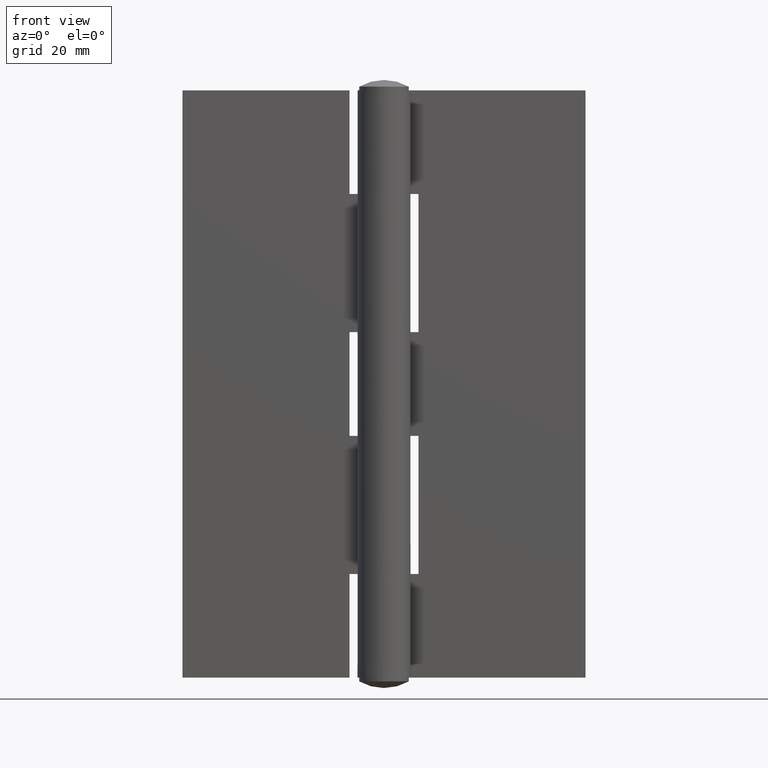
[diagram: clean part render]
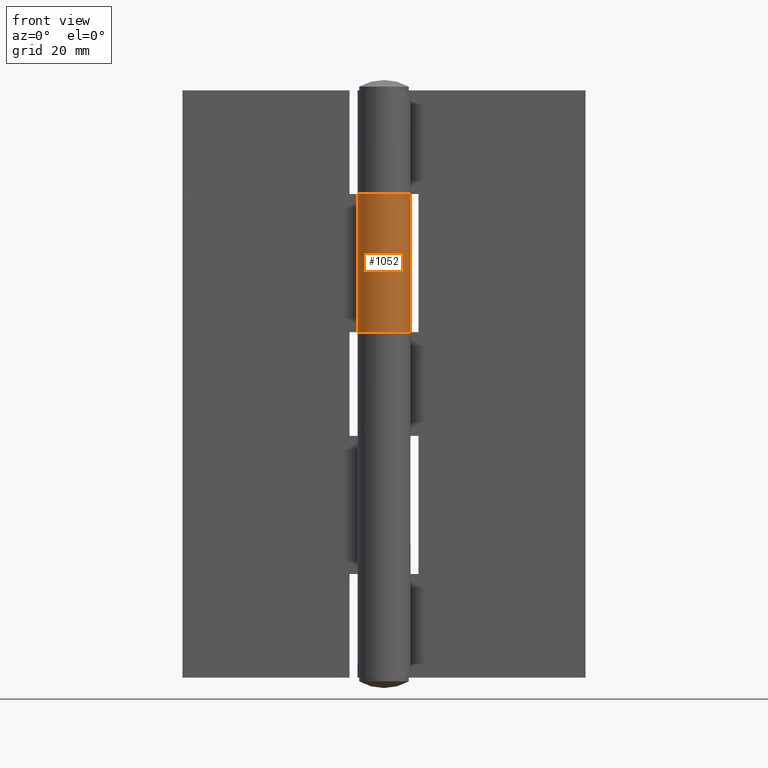
[diagram: same view with one face highlighted and labeled with its STEP entity id]
A machine part, front view. The second image highlights one B-rep face of the part: STEP entity #1052.
In plain terms, the highlighted face is a freeform B-spline surface patch.
Its self-contained STEP definition (entity closure, byte-faithful):
#667=CARTESIAN_POINT('',(0.004289521649760,4.599998000000000,60.0));
#668=VERTEX_POINT('',#667);
#669=CARTESIAN_POINT('',(-3.687479559265210,2.749999000000000,60.0));
#670=VERTEX_POINT('',#669);
#671=CARTESIAN_POINT('',(0.004289521649760,4.599998000000000,60.0));
#672=CARTESIAN_POINT('',(0.469144818228748,4.599785373809386,59.999999999999872));
#673=CARTESIAN_POINT('',(1.174164475592962,4.491072727452226,60.000000000000327));
#674=CARTESIAN_POINT('',(2.024365548104589,4.148914920145314,59.999999999999872));
#675=CARTESIAN_POINT('',(2.787412085023313,3.703237253463900,60.000000000000092));
#676=CARTESIAN_POINT('',(3.482087662535225,3.071539843813178,60.000000000000092));
#677=CARTESIAN_POINT('',(4.061839455322624,2.219670945740078,59.999999999999233));
#678=CARTESIAN_POINT('',(4.410330436053457,1.405165826991361,60.000000000000377));
#679=CARTESIAN_POINT('',(4.599051811874219,0.523578765529952,60.000000000000050));
#680=CARTESIAN_POINT('',(4.616946616225383,-0.491094017753723,59.999999999999893));
#681=CARTESIAN_POINT('',(4.375866830440423,-1.581006006294545,60.000000000000107));
#682=CARTESIAN_POINT('',(3.876880238149017,-2.541565565788051,60.000000000000078));
#683=CARTESIAN_POINT('',(3.198031804449458,-3.358473723348694,59.999999999998757));
#684=CARTESIAN_POINT('',(2.468975010575746,-3.921905802607777,60.000000000002821));
#685=CARTESIAN_POINT('',(1.599795420990952,-4.340458661659215,59.999999999998238));
#686=CARTESIAN_POINT('',(0.791227528683477,-4.560701388612872,60.000000000000682));
#687=CARTESIAN_POINT('',(-0.171798263173315,-4.630722087095790,60.000000000001421));
#688=CARTESIAN_POINT('',(-1.083481717230678,-4.505440195559590,59.999999999996959));
#689=CARTESIAN_POINT('',(-2.052534859038909,-4.156526838250800,59.999999999998451));
#690=CARTESIAN_POINT('',(-2.805380126375623,-3.684627038690631,60.000000000012427));
#691=CARTESIAN_POINT('',(-3.505319355906050,-3.021278409268501,59.999999999991942));
#692=CARTESIAN_POINT('',(-3.986163562579578,-2.353545159410556,60.000000000003737));
#693=CARTESIAN_POINT('',(-4.335185904873867,-1.593825803839531,59.999999999999027));
#694=CARTESIAN_POINT('',(-4.522195197270515,-0.928231140942420,60.000000000000142));
#695=CARTESIAN_POINT('',(-4.618253222894430,-0.179258481184975,59.999999999999993));
#696=CARTESIAN_POINT('',(-4.581334628312688,0.754329043670543,60.000000000000043));
#697=CARTESIAN_POINT('',(-4.287029122069541,1.797467259588612,59.999999999999972));
#698=CARTESIAN_POINT('',(-3.898328038897004,2.467361979410396,59.999999999999957));
#699=CARTESIAN_POINT('',(-3.687479559265210,2.749999000000000,60.0));
#700=B_SPLINE_CURVE_WITH_KNOTS('',3,(#671,#672,#673,#674,#675,#676,#677,#678,#679,#680,#681,#682,#683,#684,#685,#686,#687,#688,#689,#690,#691,#692,#693,#694,#695,#696,#697,#698,#699),.UNSPECIFIED.,.F.,.U.,(4,1,1,1,1,1,1,1,1,1,1,1,1,1,1,1,1,1,1,1,1,1,1,1,1,1,4),(0.000000588664012,1.394478489762218,2.115803686651262,2.740947564820498,4.039294168690017,4.904898489120242,5.818505076133992,6.684028072658926,7.597672270092225,8.847967575403763,10.002070283071580,10.819561606364161,12.021755407992410,12.742965971706701,13.704711953159560,14.522196465023120,15.628205441338100,16.445682531274269,17.599789292246420,18.273028270469879,19.330855010815469,20.052155549776099,20.773475061630279,21.398613889493529,22.312275525445301,23.562563894985551,24.620428434843859),.UNSPECIFIED.);
#701=EDGE_CURVE('',#668,#670,#700,.T.);
#824=CARTESIAN_POINT('',(-3.687479559265210,2.749999000000000,84.0));
#825=VERTEX_POINT('',#824);
#826=CARTESIAN_POINT('',(0.004289521649760,4.599998000000000,84.0));
#827=VERTEX_POINT('',#826);
#828=CARTESIAN_POINT('',(-3.687479559265210,2.749999000000000,84.0));
#829=CARTESIAN_POINT('',(-3.965581047873126,2.377501999539784,84.000000000000043));
#830=CARTESIAN_POINT('',(-4.315671296252134,1.719007527312562,84.000000000000185));
#831=CARTESIAN_POINT('',(-4.581141906052718,0.673995096211267,83.999999999999375));
#832=CARTESIAN_POINT('',(-4.622390122233187,-0.147378111613828,84.000000000001222));
#833=CARTESIAN_POINT('',(-4.518086116764247,-0.960089626226426,83.999999999999019));
#834=CARTESIAN_POINT('',(-4.260930736839959,-1.840617768321246,84.000000000002046));
#835=CARTESIAN_POINT('',(-3.759156158758051,-2.728486937669760,83.999999999997115));
#836=CARTESIAN_POINT('',(-2.986574713243091,-3.549822955251034,84.000000000002785));
#837=CARTESIAN_POINT('',(-2.181872259046907,-4.090154224849990,84.000000000001094));
#838=CARTESIAN_POINT('',(-1.343909091531057,-4.421785840054670,83.999999999998536));
#839=CARTESIAN_POINT('',(-0.463248789185360,-4.609347491622830,84.000000000002316));
#840=CARTESIAN_POINT('',(0.441416505195245,-4.614616201424587,83.999999999998096));
#841=CARTESIAN_POINT('',(1.512047377869564,-4.388227956948835,83.999999999999915));
#842=CARTESIAN_POINT('',(2.420810132064692,-3.962233704337852,83.999999999998437));
#843=CARTESIAN_POINT('',(3.150548900051591,-3.379557182073605,84.000000000000156));
#844=CARTESIAN_POINT('',(3.689354970897858,-2.783747193316552,83.999999999999702));
#845=CARTESIAN_POINT('',(4.113902252155884,-2.118348212750520,84.000000000001904));
#846=CARTESIAN_POINT('',(4.406157955070864,-1.385974365097320,83.999999999999559));
#847=CARTESIAN_POINT('',(4.580201688219102,-0.618216398273826,83.999999999992042));
#848=CARTESIAN_POINT('',(4.633222115963790,0.330692205679325,84.000000000025409));
#849=CARTESIAN_POINT('',(4.451835524397818,1.301359964037639,83.999999999989100));
#850=CARTESIAN_POINT('',(4.091173911302676,2.143882236464116,84.000000000001961));
#851=CARTESIAN_POINT('',(3.706196295400364,2.756469820137586,83.999999999999972));
#852=CARTESIAN_POINT('',(3.135140195208996,3.410504483980053,84.000000000001165));
#853=CARTESIAN_POINT('',(2.362916429868729,3.996399352343053,83.999999999998337));
#854=CARTESIAN_POINT('',(1.270319724148310,4.476252583592778,83.999999999998337));
#855=CARTESIAN_POINT('',(0.469146708145962,4.599778910715768,84.000000000010473));
#856=CARTESIAN_POINT('',(0.004289521649760,4.599998000000000,84.0));
#857=B_SPLINE_CURVE_WITH_KNOTS('',3,(#828,#829,#830,#831,#832,#833,#834,#835,#836,#837,#838,#839,#840,#841,#842,#843,#844,#845,#846,#847,#848,#849,#850,#851,#852,#853,#854,#855,#856),.UNSPECIFIED.,.F.,.U.,(4,1,1,1,1,1,1,1,1,1,1,1,1,1,1,1,1,1,1,1,1,1,1,1,1,1,4),(0.000000588656704,1.394478489755468,2.211976841818277,3.221818870557378,3.846952417880921,4.664441279150289,5.962815379549760,6.876358283261350,8.030478368640047,8.847967575399968,9.569274238180253,10.723388837468001,11.540852632196520,12.839124027656080,13.704711953157609,14.329855489520289,15.243507607347510,16.060995989600769,16.686143413117978,17.599789292245742,18.898072255248550,19.619358590354349,20.340675546737192,21.061996970852590,22.216102272126161,23.225932350254901,24.620428434843902),.UNSPECIFIED.);
#858=EDGE_CURVE('',#825,#827,#857,.T.);
#1010=CARTESIAN_POINT('',(-3.687479559265210,2.749999000000000,84.0));
#1011=CARTESIAN_POINT('',(-3.687479559265210,2.749999000000000,60.0));
#1012=QUASI_UNIFORM_CURVE('',1,(#1010,#1011),.UNSPECIFIED.,.F.,.U.);
#1013=EDGE_CURVE('',#825,#670,#1012,.T.);
#1020=CARTESIAN_POINT('',(-3.597325666293642,2.866923098135845,84.600000000000009));
#1021=CARTESIAN_POINT('',(-3.597325666293642,2.866923098135845,59.384999999999991));
#1022=CARTESIAN_POINT('',(-7.288903981172223,-1.765154207976948,84.599999999999994));
#1023=CARTESIAN_POINT('',(-7.288903981172223,-1.765154207976948,59.384999999999998));
#1024=CARTESIAN_POINT('',(-1.887117409339081,-4.195090926710597,84.600000000000009));
#1025=CARTESIAN_POINT('',(-1.887117409339081,-4.195090926710597,59.384999999999991));
#1026=CARTESIAN_POINT('',(3.514669162494061,-6.625027645444248,84.599999999999994));
#1027=CARTESIAN_POINT('',(3.514669162494061,-6.625027645444248,59.384999999999998));
#1028=CARTESIAN_POINT('',(4.531685509175729,-0.789826845534344,84.600000000000009));
#1029=CARTESIAN_POINT('',(4.531685509175729,-0.789826845534344,59.384999999999991));
#1030=CARTESIAN_POINT('',(5.548701855857396,5.045373954375559,84.599999999999994));
#1031=CARTESIAN_POINT('',(5.548701855857396,5.045373954375559,59.384999999999998));
#1032=CARTESIAN_POINT('',(-0.356635384943821,4.586154293327437,84.600000000000009));
#1033=CARTESIAN_POINT('',(-0.356635384943821,4.586154293327437,59.384999999999991));
#1041=(BOUNDED_SURFACE()B_SPLINE_SURFACE(1,2,((#1020,#1022,#1024,#1026,#1028,#1030,#1032),(#1021,#1023,#1025,#1027,#1029,#1031,#1033)),.UNSPECIFIED.,.F.,.F.,.U.)B_SPLINE_SURFACE_WITH_KNOTS((2,2),(3,2,2,3),(0.0,25.215000000000021),(0.0,9.007431044261566,18.014862088523131,27.022293132784700),.UNSPECIFIED.)GEOMETRIC_REPRESENTATION_ITEM()RATIONAL_B_SPLINE_SURFACE(((1.0,0.613366643455859,1.0,0.613366643455859,1.0,0.613366643455859,1.0),(1.0,0.613366643455859,1.0,0.613366643455859,1.0,0.613366643455859,1.0)))REPRESENTATION_ITEM('')SURFACE());
#1042=ORIENTED_EDGE('',*,*,#701,.F.);
#1043=CARTESIAN_POINT('',(0.004289521649760,4.599998000000000,84.0));
#1044=CARTESIAN_POINT('',(0.004289521649760,4.599998000000000,60.0));
#1045=QUASI_UNIFORM_CURVE('',1,(#1043,#1044),.UNSPECIFIED.,.F.,.U.);
#1046=EDGE_CURVE('',#827,#668,#1045,.T.);
#1047=ORIENTED_EDGE('',*,*,#1046,.F.);
#1048=ORIENTED_EDGE('',*,*,#858,.F.);
#1049=ORIENTED_EDGE('',*,*,#1013,.T.);
#1050=EDGE_LOOP('',(#1042,#1047,#1048,#1049));
#1051=FACE_OUTER_BOUND('',#1050,.T.);
#1052=ADVANCED_FACE('',(#1051),#1041,.T.);